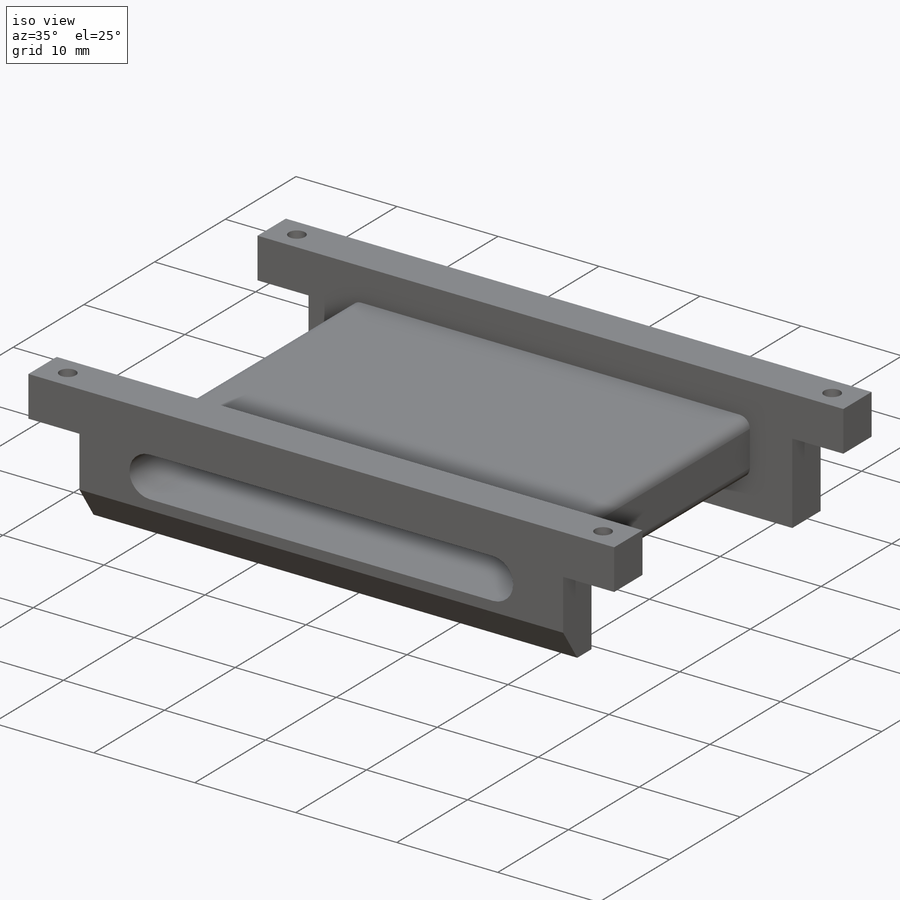
[diagram: iso view]
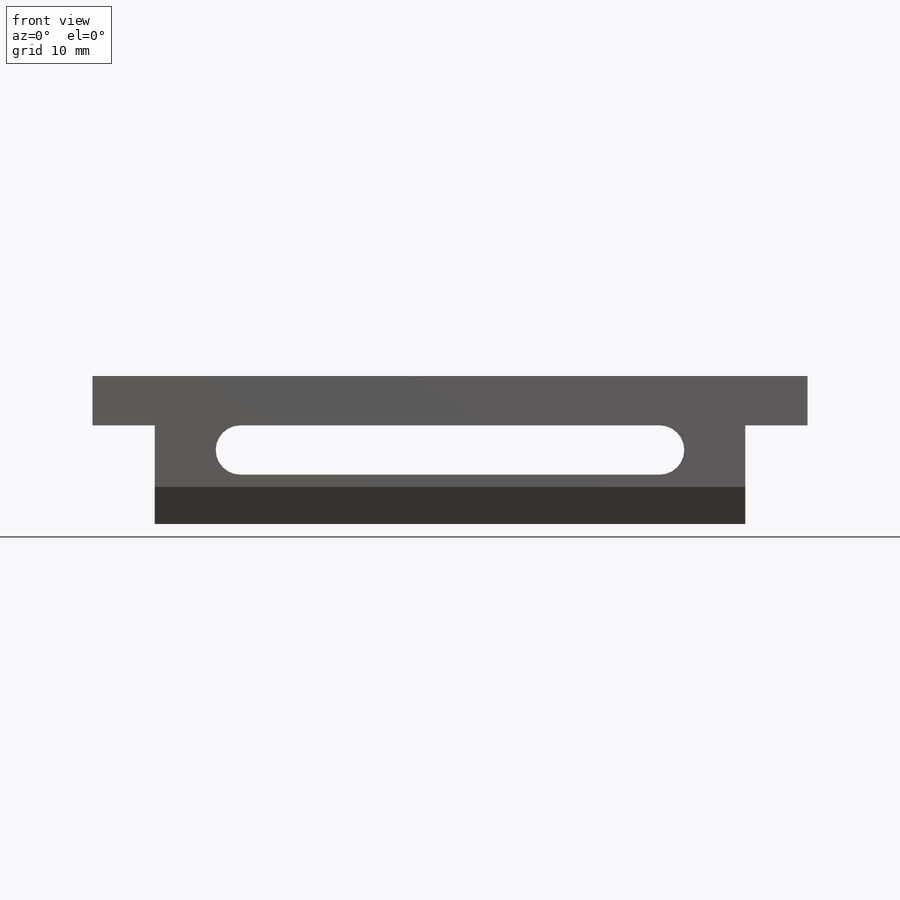
[diagram: front view]
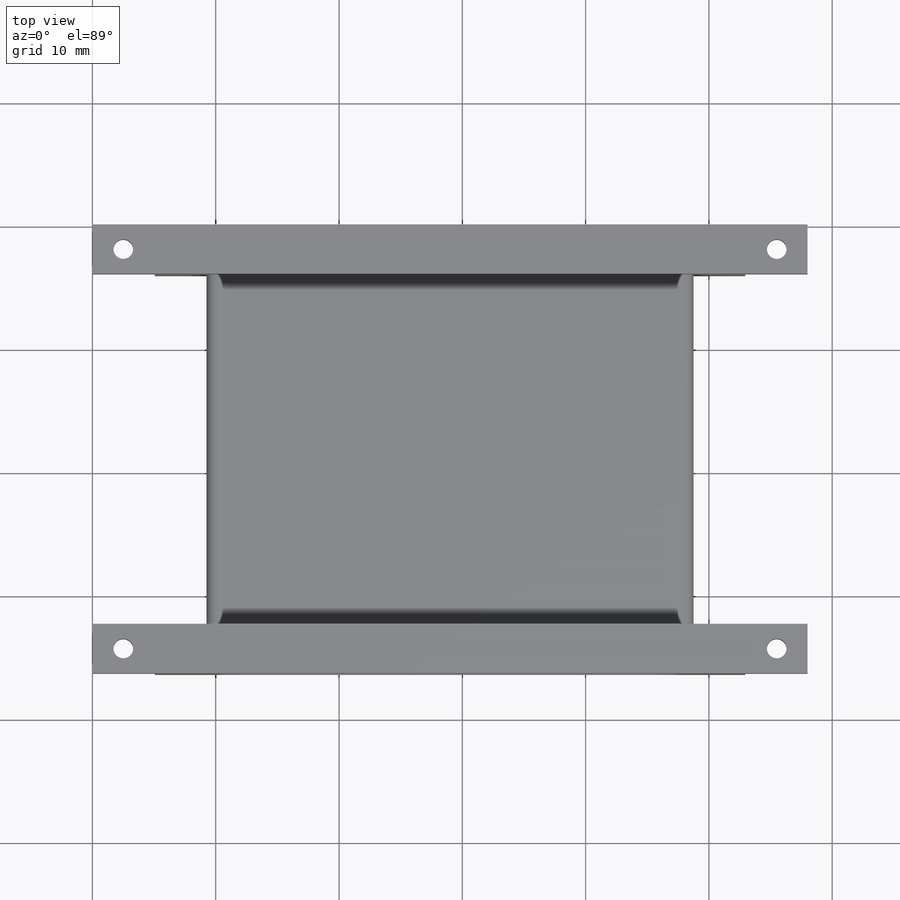
[diagram: top view]
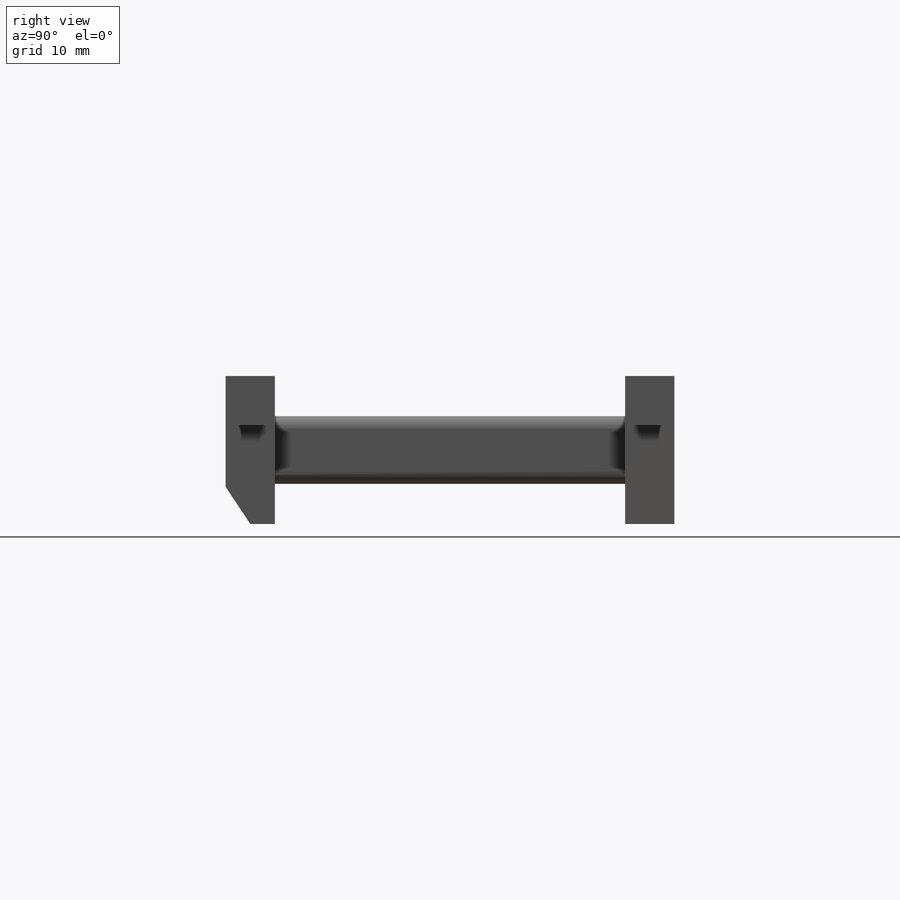
[diagram: right view]
SOLIDWORKS PART (.sldprt)
format: sldprt  version: not decoded by parser v0  size: 266,240 bytes
history: native  units: mm
features: sketch x4, material x1, extrude x1, cut_extrude x1, chamfer x1, hole x1 (+11 scaffold rows collapsed)
feature tree (20):
  scaffold x11  (default folders/planes/origin — collapsed)
  material  "Material <not specified>"
  sketch  "Sketch1"  dims[D1=8.0mm D2=4.0mm D3=47.9mm D4=34.0mm D5=6.95mm D6=58.0mm D7=4.0mm D8=4.0mm]
  extrude  "Boss-Extrude1"  Depth=36.4mm
  sketch  "Sketch2"  dims[D1=1.0mm D2=5.5mm D3=4.2mm D4=39.5mm D5=0.75mm]
  cut_extrude  "Cut-Extrude1"  Depth=4mm
  chamfer  "Chamfer1"  Distance=2mm
  hole  "Tap Drill for M2x0.4 Tap1"  Diameter=1.6mm Depth=4mm
  sketch  "Sketch4"  dims[D1=2.0mm D2=2.5mm D3=2.0mm D4=2.5mm]
  sketch  "Sketch3"  dims[hole-wizard template sketch: 60 standard entries collapsed; hole parameters kept: c18.Thru Hole Depth=4.0mm]
decode coverage: 8 of 8 modeling features carry decoded parameters
note: ~ marks probable driven/reference dimensions
note: suppression state not decoded; provenance and decode notes live in map.json
